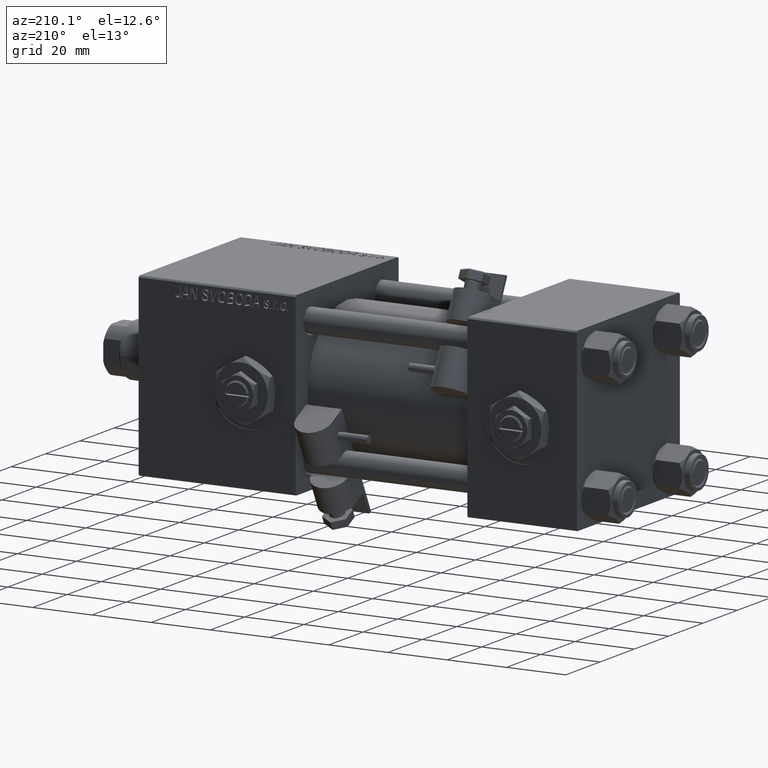
[diagram: clean part render]
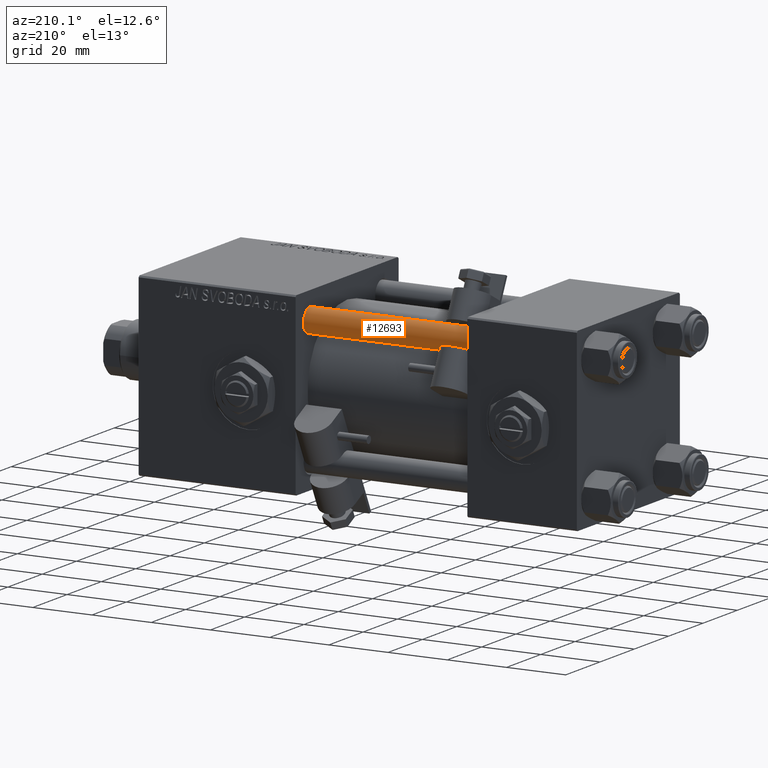
[diagram: same view with one face highlighted and labeled with its STEP entity id]
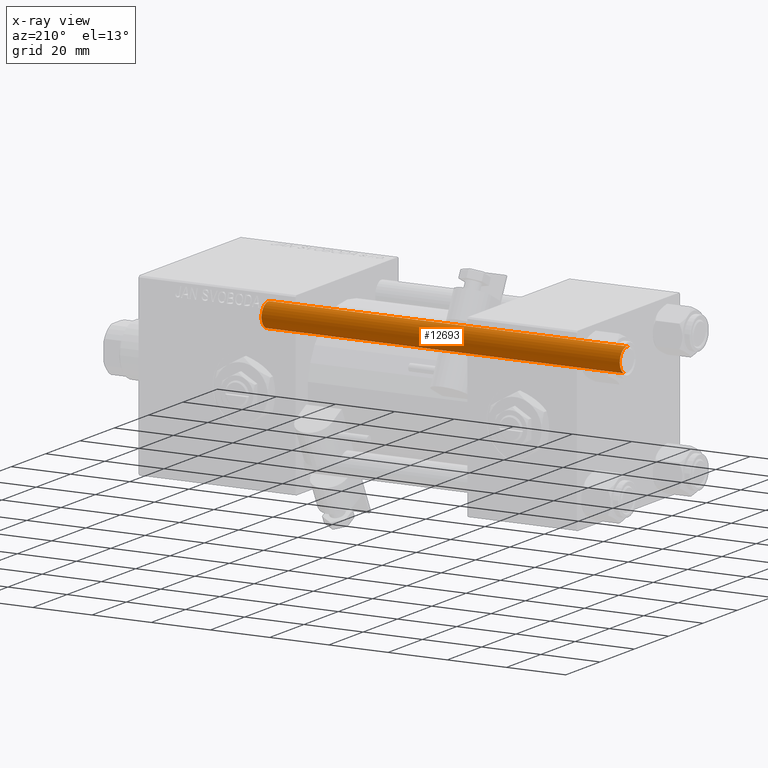
[diagram: x-ray of the same camera — body ghosted, the highlighted face saturated]
A machine part, auxiliary view. The second image highlights one B-rep face of the part: STEP entity #12693.
The next image is the same camera in x-ray: the body ghosted, the highlighted face saturated — about 0% of this face is hidden behind the body in this view.
In plain terms, the highlighted cylindrical surface (edge-blend (fillet) strip) has radius 4 mm, axis along (-1, 0, 0).
Its self-contained STEP definition (entity closure, byte-faithful):
#431 = CARTESIAN_POINT ( 'NONE',  ( -4.000000000000000000, 0.000000000000000000, 0.5000000000000559552 ) ) ;
#2186 = CARTESIAN_POINT ( 'NONE',  ( -4.000000000000000000, 0.000000000000000000, 122.0000000000000000 ) ) ;
#2228 = CARTESIAN_POINT ( 'NONE',  ( 4.000000000000000000, 4.898587196589411843E-16, 121.5000000000000426 ) ) ;
#2422 = DIRECTION ( 'NONE',  ( -0.000000000000000000, -0.000000000000000000, -1.000000000000000000 ) ) ;
#4180 = AXIS2_PLACEMENT_3D ( 'NONE', #25693, #2422, #34037 ) ;
#4212 = EDGE_CURVE ( 'NONE', #42579, #21638, #33231, .T. ) ;
#5909 = CIRCLE ( 'NONE', #28280, 4.000000000000000000 ) ;
#7778 = DIRECTION ( 'NONE',  ( 1.000000000000000000, 0.000000000000000000, 0.000000000000000000 ) ) ;
#8080 = CARTESIAN_POINT ( 'NONE',  ( -4.000000000000000000, 0.000000000000000000, 121.5000000000000426 ) ) ;
#9252 = FACE_OUTER_BOUND ( 'NONE', #41042, .T. ) ;
#9718 = CARTESIAN_POINT ( 'NONE',  ( 4.000000000000000000, 4.898587196589411843E-16, 0.5000000000000559552 ) ) ;
#11813 = DIRECTION ( 'NONE',  ( 0.000000000000000000, 0.000000000000000000, -1.000000000000000000 ) ) ;
#12693 = ADVANCED_FACE ( 'NONE', ( #9252 ), #39870, .T. ) ;
#14477 = CARTESIAN_POINT ( 'NONE',  ( 4.000000000000000000, 4.898587196589411843E-16, 122.0000000000000000 ) ) ;
#14501 = VECTOR ( 'NONE', #42762, 1000.000000000000000 ) ;
#14678 = VERTEX_POINT ( 'NONE', #2228 ) ;
#21638 = VERTEX_POINT ( 'NONE', #431 ) ;
#24990 = DIRECTION ( 'NONE',  ( -0.000000000000000000, -0.000000000000000000, 1.000000000000000000 ) ) ;
#25693 = CARTESIAN_POINT ( 'NONE',  ( 0.000000000000000000, 0.000000000000000000, 122.0000000000000000 ) ) ;
#27795 = EDGE_CURVE ( 'NONE', #33648, #21638, #47751, .T. ) ;
#28280 = AXIS2_PLACEMENT_3D ( 'NONE', #48747, #11813, #7778 ) ;
#29820 = AXIS2_PLACEMENT_3D ( 'NONE', #33068, #24990, #41413 ) ;
#33068 = CARTESIAN_POINT ( 'NONE',  ( 0.000000000000000000, 0.000000000000000000, 0.5000000000000559552 ) ) ;
#33231 = CIRCLE ( 'NONE', #29820, 4.000000000000000000 ) ;
#33648 = VERTEX_POINT ( 'NONE', #8080 ) ;
#34037 = DIRECTION ( 'NONE',  ( -1.000000000000000000, 0.000000000000000000, 0.000000000000000000 ) ) ;
#36207 = ORIENTED_EDGE ( 'NONE', *, *, #4212, .T. ) ;
#39870 = CYLINDRICAL_SURFACE ( 'NONE', #4180, 4.000000000000000000 ) ;
#41042 = EDGE_LOOP ( 'NONE', ( #47996, #48321, #36207, #46018 ) ) ;
#41413 = DIRECTION ( 'NONE',  ( 1.000000000000000000, 0.000000000000000000, 0.000000000000000000 ) ) ;
#42496 = LINE ( 'NONE', #14477, #14501 ) ;
#42579 = VERTEX_POINT ( 'NONE', #9718 ) ;
#42762 = DIRECTION ( 'NONE',  ( -0.000000000000000000, -0.000000000000000000, -1.000000000000000000 ) ) ;
#43156 = DIRECTION ( 'NONE',  ( -0.000000000000000000, -0.000000000000000000, -1.000000000000000000 ) ) ;
#46018 = ORIENTED_EDGE ( 'NONE', *, *, #27795, .F. ) ;
#47751 = LINE ( 'NONE', #2186, #51223 ) ;
#47996 = ORIENTED_EDGE ( 'NONE', *, *, #51030, .T. ) ;
#48321 = ORIENTED_EDGE ( 'NONE', *, *, #51895, .T. ) ;
#48747 = CARTESIAN_POINT ( 'NONE',  ( 0.000000000000000000, 0.000000000000000000, 121.5000000000000426 ) ) ;
#51030 = EDGE_CURVE ( 'NONE', #33648, #14678, #5909, .T. ) ;
#51223 = VECTOR ( 'NONE', #43156, 1000.000000000000000 ) ;
#51895 = EDGE_CURVE ( 'NONE', #14678, #42579, #42496, .T. ) ;